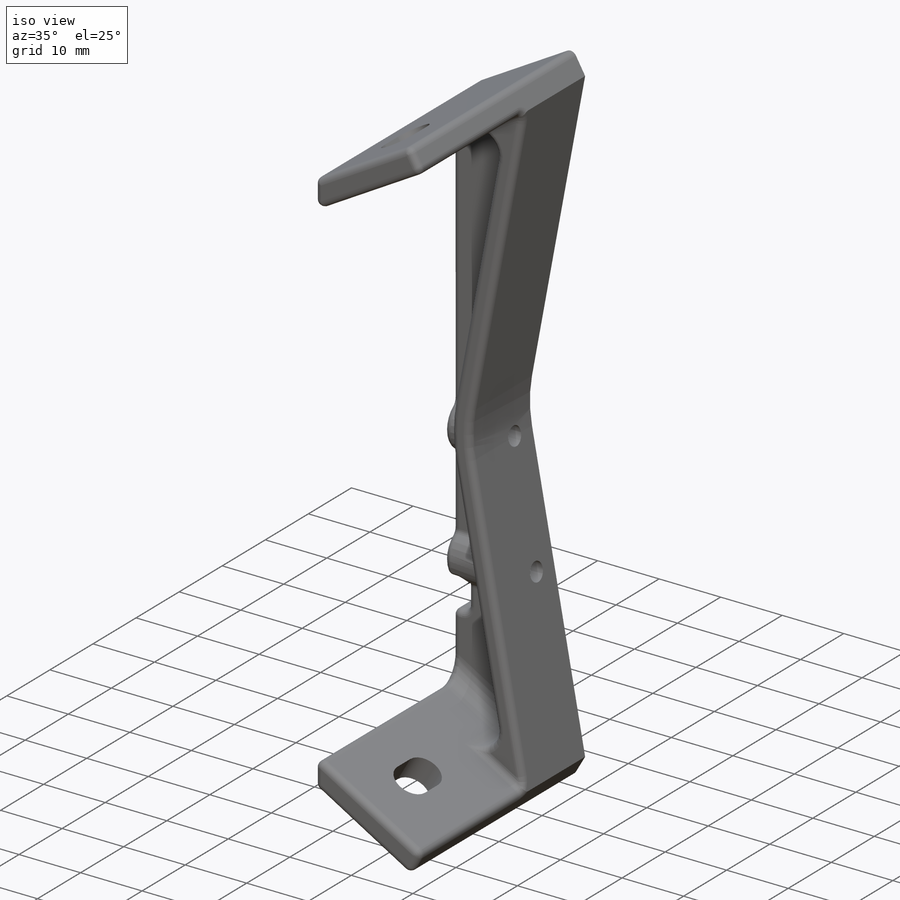
[diagram: iso view]
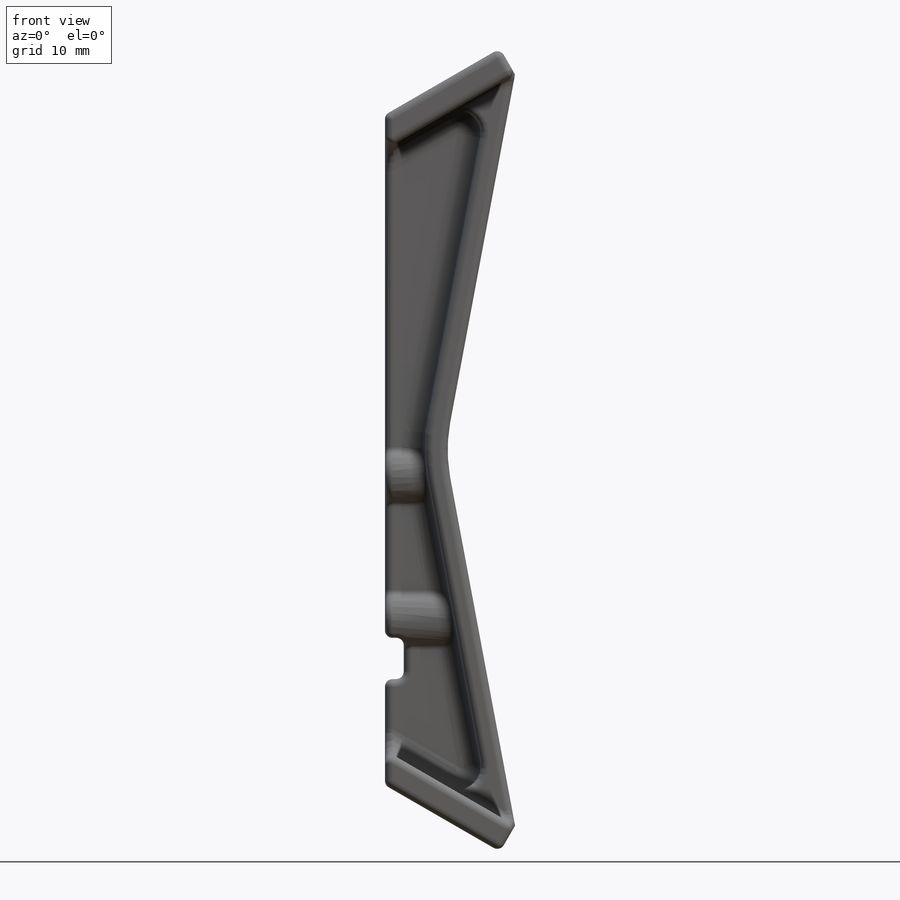
[diagram: front view]
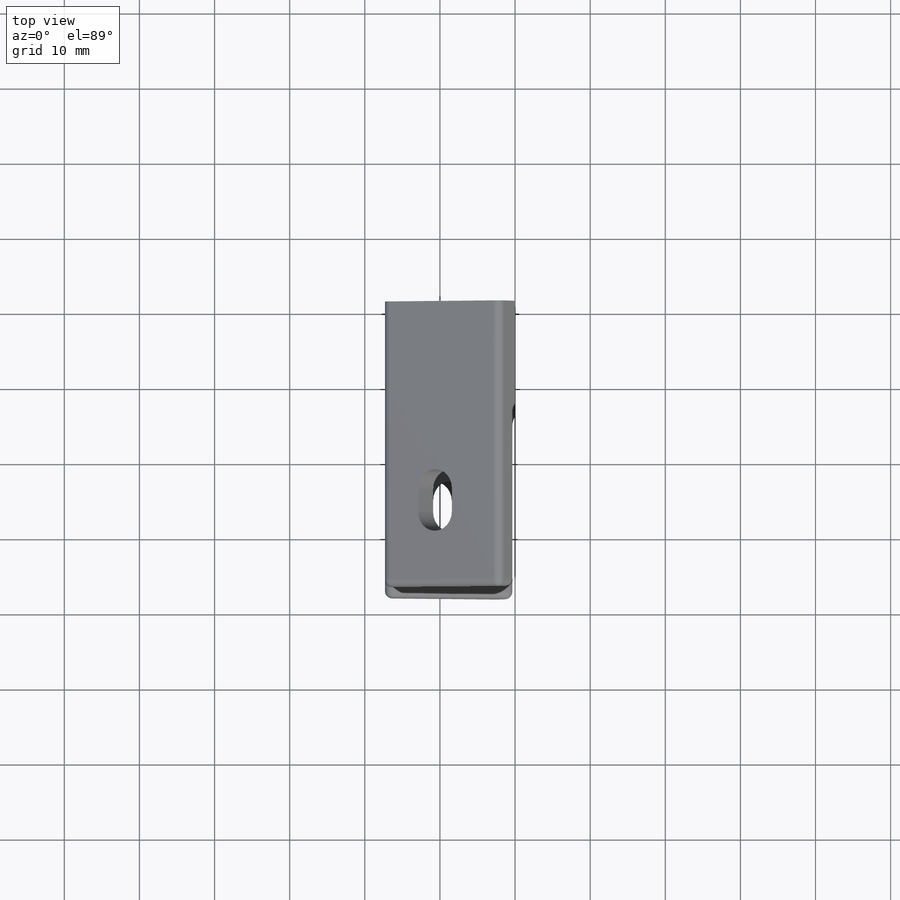
[diagram: top view]
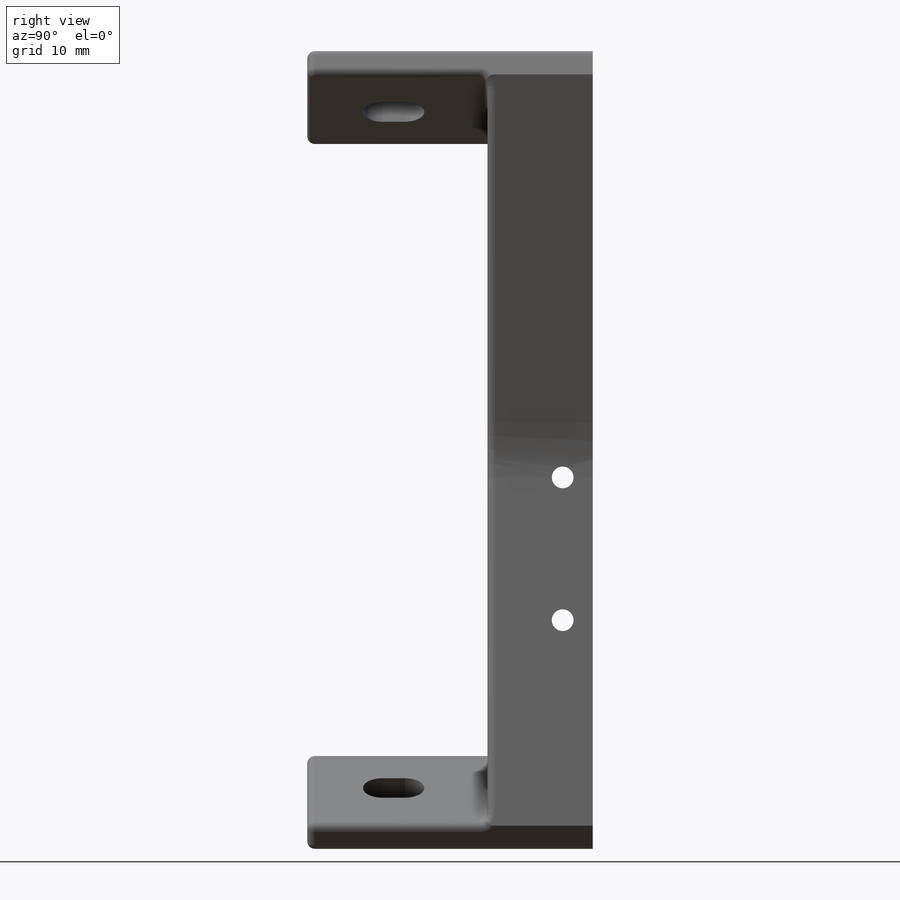
[diagram: right view]
SOLIDWORKS PART (.sldprt)
format: sldprt  version: not decoded by parser v0  size: 569,344 bytes
history: native  units: mm
features: sketch x7, extrude x4, fillet x4, cut_extrude x3, material x1, plane x1, mirror x1 (+13 scaffold rows collapsed)
feature tree (34):
  scaffold x13  (default folders/planes/origin — collapsed)
  material  "Material <not specified>"
  sketch  "Sketch2"  dims[c1.D7=1.0mm c1.D1=39.6mm c1.D2=20.0mm c1.D3=8.0mm c1.D4=25.0mm c1.D5=4.0mm c2.D2=20.0mm c2.D1=4.0mm c2.D5=39.6mm c3.D1=2.5mm c3.D2=20.0mm c3.D6=30.5mm c3.D5=40.0mm c3.D8=8.1mm c4.D8=120.0deg c4.D9=40.0mm]
  extrude  "Boss-Extrude1"  Depth=6mm
  sketch  "Sketch3"  dims[c1.D1=~7.01398mm c1.D2=~7.01398mm c1.D3=2.9mm c1.D4=8.0mm c1.D5=2.9mm c2.D2=2.9mm c2.D1=19.0mm c3.D2=3.25mm c3.D5=3.0mm c4.D2=3.65mm]
  extrude  "Boss-Extrude2"  [1 undecoded]
  fillet  "Fillet4"  Radius=20mm
  cut_extrude  "Cut-Extrude2"  [1 undecoded]
  sketch  "Sketch3<4>"
  sketch  "Sketch5"  dims[D1=0.0mm]
  cut_extrude  "Cut-Extrude4"  [1 undecoded]
  sketch  "Sketch13"  dims[D1=3.0mm]
  extrude  "Boss-Extrude5"  Depth=8mm
  plane  "Plane1"
  sketch  "Sketch11"  dims[c1.D1=2.6mm c1.D2=2.5mm c1.D3=2.5mm c1.D4=2.5mm c2.D3=2.6mm c2.D2=3.0mm c3.D3=10.0mm c3.D4=10.0mm c4.D3=25.0mm]
  extrude  "Boss-Extrude4"  Depth=4mm
  mirror  "Mirror1"
  sketch  "Sketch12"
  cut_extrude  "Cut-Extrude6"  [1 undecoded]
  fillet  "Fillet1"  Radius=3mm
  fillet  "Fillet6"  Radius=1mm
  fillet  "Fillet5"  Radius=1mm
decode coverage: 12 of 19 modeling features carry decoded parameters
note: ~ marks probable driven/reference dimensions
note: 4 parameter values undecoded
summary: no parameter record found for 4 features
note: suppression state not decoded; provenance and decode notes live in map.json
